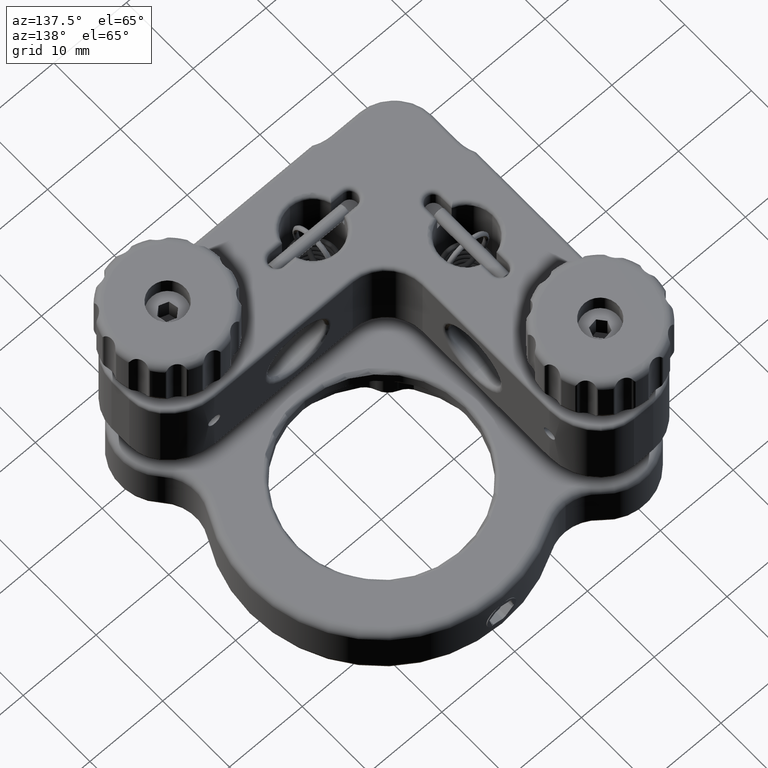
[diagram: clean part render]
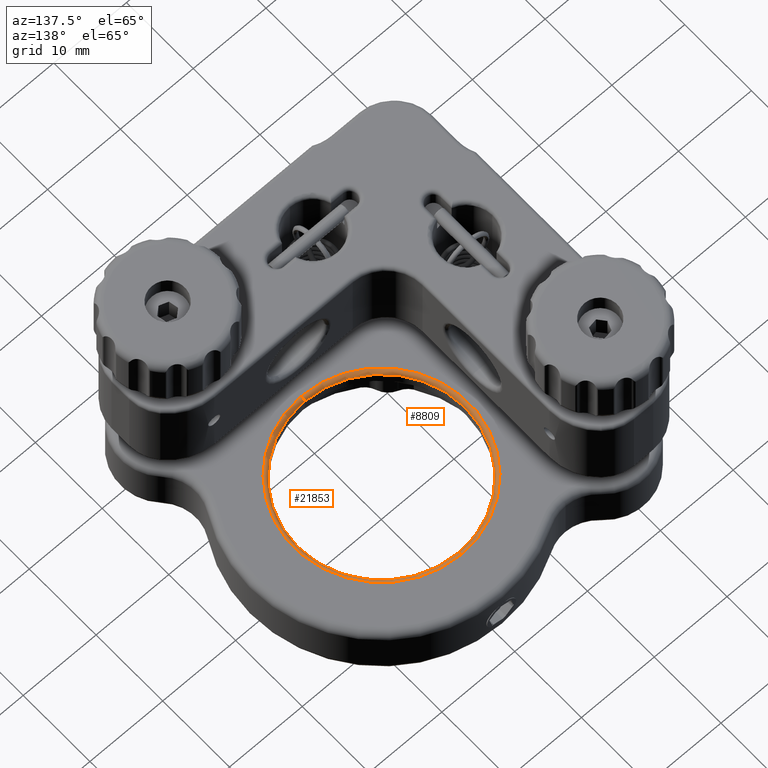
[diagram: same view with one multi-face feature highlighted, each face labeled with its STEP entity id]
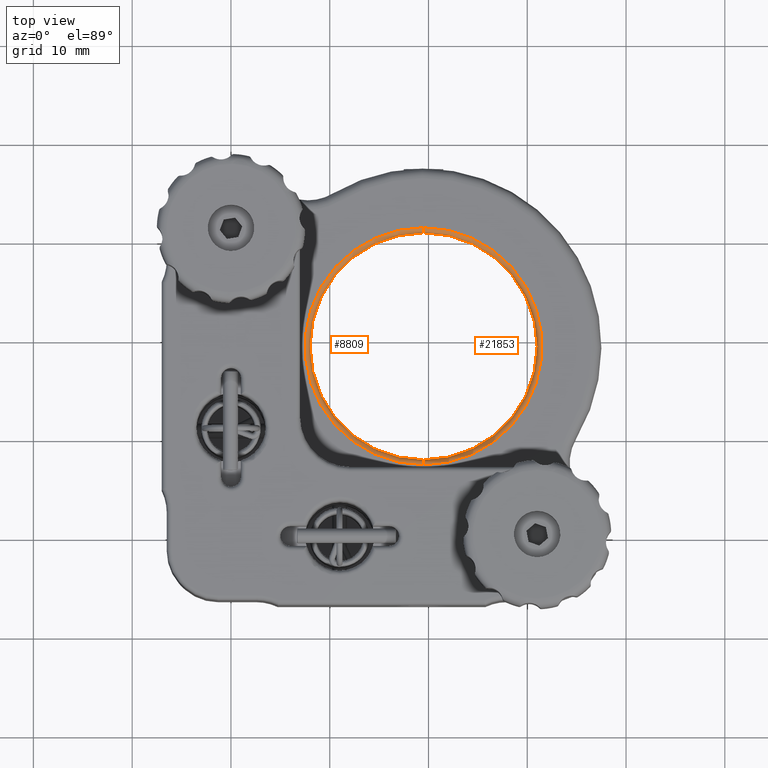
[diagram: same view with one multi-face feature highlighted, each face labeled with its STEP entity id]
A machine part, auxiliary view. The highlighted faces form ONE feature: a constant-radius fillet chain: 2 tangent blend faces with common blend radius 0.5 mm. The faces share edges in the B-rep.
A second angle (top view) of the same feature is appended — it is thin or edge-on in the first view.
Their STEP definitions:
[1] entity #8809 (Torus):
#126 = TOROIDAL_SURFACE ( 'NONE', #5390, 12.00000000000001954, 0.5000000000000000000 ) ;
#2197 = CIRCLE ( 'NONE', #17186, 12.00000000000001954 ) ;
#3091 = CARTESIAN_POINT ( 'NONE',  ( 19.50000000000002487, 19.49999999999992539, -10.00000000000000533 ) ) ;
#3881 = VERTEX_POINT ( 'NONE', #6230 ) ;
#4020 = DIRECTION ( 'NONE',  ( 1.000000000000000000, -2.310651670001107050E-15, 6.413346714809496485E-32 ) ) ;
#4253 = VERTEX_POINT ( 'NONE', #21562 ) ;
#4271 = CARTESIAN_POINT ( 'NONE',  ( 19.49999999999999645, 7.499999999999907629, -10.50000000000000533 ) ) ;
#4622 = CARTESIAN_POINT ( 'NONE',  ( 19.49999999999999645, 7.499999999999907629, -10.00000000000000533 ) ) ;
#4976 = AXIS2_PLACEMENT_3D ( 'NONE', #9349, #15187, #22944 ) ;
#5276 = DIRECTION ( 'NONE',  ( 0.000000000000000000, -1.000000000000000000, 0.000000000000000000 ) ) ;
#5390 = AXIS2_PLACEMENT_3D ( 'NONE', #15436, #13153, #13525 ) ;
#5485 = EDGE_CURVE ( 'NONE', #21430, #4253, #2197, .T. ) ;
#6105 = EDGE_CURVE ( 'NONE', #3881, #23678, #23222, .T. ) ;
#6230 = CARTESIAN_POINT ( 'NONE',  ( 19.50000000000005329, 30.99999999999994316, -10.50000000000000533 ) ) ;
#7184 = EDGE_LOOP ( 'NONE', ( #20713, #14180, #21965, #24104 ) ) ;
#7410 = AXIS2_PLACEMENT_3D ( 'NONE', #4271, #4020, #11760 ) ;
#7802 = CIRCLE ( 'NONE', #7410, 0.5000000000000004441 ) ;
#8809 = ADVANCED_FACE ( 'NONE', ( #24973 ), #126, .T. ) ;
#8894 = EDGE_CURVE ( 'NONE', #23678, #21430, #7802, .T. ) ;
#9349 = CARTESIAN_POINT ( 'NONE',  ( 19.50000000000002487, 19.49999999999992539, -10.50000000000000533 ) ) ;
#11694 = CARTESIAN_POINT ( 'NONE',  ( 19.49999999999999645, 7.999999999999908518, -10.50000000000000533 ) ) ;
#11760 = DIRECTION ( 'NONE',  ( 0.000000000000000000, 1.000000000000000000, 0.000000000000000000 ) ) ;
#12726 = DIRECTION ( 'NONE',  ( -2.312964634635739111E-15, -1.000000000000000000, 0.000000000000000000 ) ) ;
#13028 = EDGE_CURVE ( 'NONE', #3881, #4253, #17742, .T. ) ;
#13153 = DIRECTION ( 'NONE',  ( 0.000000000000000000, -2.775557561562891967E-17, -1.000000000000000000 ) ) ;
#13525 = DIRECTION ( 'NONE',  ( -2.220446049250309531E-15, -1.000000000000000000, 2.775557561562891967E-17 ) ) ;
#14180 = ORIENTED_EDGE ( 'NONE', *, *, #13028, .T. ) ;
#14920 = DIRECTION ( 'NONE',  ( -1.000000000000000000, 2.188186990086371902E-15, -6.073438946447774201E-32 ) ) ;
#15187 = DIRECTION ( 'NONE',  ( -0.000000000000000000, 2.775557561562891967E-17, 1.000000000000000000 ) ) ;
#15436 = CARTESIAN_POINT ( 'NONE',  ( 19.50000000000002487, 19.49999999999992539, -10.50000000000000533 ) ) ;
#17186 = AXIS2_PLACEMENT_3D ( 'NONE', #3091, #22265, #12726 ) ;
#17742 = CIRCLE ( 'NONE', #19784, 0.5000000000000004441 ) ;
#18879 = CARTESIAN_POINT ( 'NONE',  ( 19.50000000000005329, 31.49999999999994316, -10.50000000000000533 ) ) ;
#19784 = AXIS2_PLACEMENT_3D ( 'NONE', #18879, #14920, #5276 ) ;
#20713 = ORIENTED_EDGE ( 'NONE', *, *, #6105, .F. ) ;
#21430 = VERTEX_POINT ( 'NONE', #4622 ) ;
#21562 = CARTESIAN_POINT ( 'NONE',  ( 19.50000000000005329, 31.49999999999994316, -10.00000000000000533 ) ) ;
#21965 = ORIENTED_EDGE ( 'NONE', *, *, #5485, .F. ) ;
#22265 = DIRECTION ( 'NONE',  ( 0.000000000000000000, -2.775557561562891967E-17, -1.000000000000000000 ) ) ;
#22944 = DIRECTION ( 'NONE',  ( -2.413528314402509948E-15, -1.000000000000000000, 0.000000000000000000 ) ) ;
#23222 = CIRCLE ( 'NONE', #4976, 11.50000000000001954 ) ;
#23678 = VERTEX_POINT ( 'NONE', #11694 ) ;
#24104 = ORIENTED_EDGE ( 'NONE', *, *, #8894, .F. ) ;
#24973 = FACE_OUTER_BOUND ( 'NONE', #7184, .T. ) ;
[2] entity #21853 (Torus):
#1191 = CIRCLE ( 'NONE', #8466, 11.50000000000001954 ) ;
#3323 = ORIENTED_EDGE ( 'NONE', *, *, #17327, .F. ) ;
#3589 = FACE_OUTER_BOUND ( 'NONE', #23650, .T. ) ;
#3881 = VERTEX_POINT ( 'NONE', #6230 ) ;
#4020 = DIRECTION ( 'NONE',  ( 1.000000000000000000, -2.310651670001107050E-15, 6.413346714809496485E-32 ) ) ;
#4253 = VERTEX_POINT ( 'NONE', #21562 ) ;
#4271 = CARTESIAN_POINT ( 'NONE',  ( 19.49999999999999645, 7.499999999999907629, -10.50000000000000533 ) ) ;
#4622 = CARTESIAN_POINT ( 'NONE',  ( 19.49999999999999645, 7.499999999999907629, -10.00000000000000533 ) ) ;
#5276 = DIRECTION ( 'NONE',  ( 0.000000000000000000, -1.000000000000000000, 0.000000000000000000 ) ) ;
#5621 = CARTESIAN_POINT ( 'NONE',  ( 19.50000000000002487, 19.49999999999992539, -10.50000000000000533 ) ) ;
#5765 = DIRECTION ( 'NONE',  ( -2.413528314402509948E-15, -1.000000000000000000, 0.000000000000000000 ) ) ;
#6230 = CARTESIAN_POINT ( 'NONE',  ( 19.50000000000005329, 30.99999999999994316, -10.50000000000000533 ) ) ;
#6378 = TOROIDAL_SURFACE ( 'NONE', #13663, 12.00000000000001954, 0.5000000000000000000 ) ;
#7410 = AXIS2_PLACEMENT_3D ( 'NONE', #4271, #4020, #11760 ) ;
#7802 = CIRCLE ( 'NONE', #7410, 0.5000000000000004441 ) ;
#7900 = ORIENTED_EDGE ( 'NONE', *, *, #13028, .F. ) ;
#8466 = AXIS2_PLACEMENT_3D ( 'NONE', #15166, #11605, #5765 ) ;
#8894 = EDGE_CURVE ( 'NONE', #23678, #21430, #7802, .T. ) ;
#10577 = DIRECTION ( 'NONE',  ( -2.312964634635739111E-15, -1.000000000000000000, 0.000000000000000000 ) ) ;
#11605 = DIRECTION ( 'NONE',  ( -0.000000000000000000, 2.775557561562891967E-17, 1.000000000000000000 ) ) ;
#11694 = CARTESIAN_POINT ( 'NONE',  ( 19.49999999999999645, 7.999999999999908518, -10.50000000000000533 ) ) ;
#11760 = DIRECTION ( 'NONE',  ( 0.000000000000000000, 1.000000000000000000, 0.000000000000000000 ) ) ;
#12334 = ORIENTED_EDGE ( 'NONE', *, *, #8894, .T. ) ;
#13028 = EDGE_CURVE ( 'NONE', #3881, #4253, #17742, .T. ) ;
#13468 = DIRECTION ( 'NONE',  ( 0.000000000000000000, -2.775557561562891967E-17, -1.000000000000000000 ) ) ;
#13663 = AXIS2_PLACEMENT_3D ( 'NONE', #5621, #13468, #23513 ) ;
#14012 = DIRECTION ( 'NONE',  ( 0.000000000000000000, -2.775557561562891967E-17, -1.000000000000000000 ) ) ;
#14249 = CARTESIAN_POINT ( 'NONE',  ( 19.50000000000002487, 19.49999999999992539, -10.00000000000000533 ) ) ;
#14622 = ORIENTED_EDGE ( 'NONE', *, *, #20632, .F. ) ;
#14920 = DIRECTION ( 'NONE',  ( -1.000000000000000000, 2.188186990086371902E-15, -6.073438946447774201E-32 ) ) ;
#15166 = CARTESIAN_POINT ( 'NONE',  ( 19.50000000000002487, 19.49999999999992539, -10.50000000000000533 ) ) ;
#17327 = EDGE_CURVE ( 'NONE', #23678, #3881, #1191, .T. ) ;
#17742 = CIRCLE ( 'NONE', #19784, 0.5000000000000004441 ) ;
#18879 = CARTESIAN_POINT ( 'NONE',  ( 19.50000000000005329, 31.49999999999994316, -10.50000000000000533 ) ) ;
#19784 = AXIS2_PLACEMENT_3D ( 'NONE', #18879, #14920, #5276 ) ;
#20632 = EDGE_CURVE ( 'NONE', #4253, #21430, #24009, .T. ) ;
#21430 = VERTEX_POINT ( 'NONE', #4622 ) ;
#21562 = CARTESIAN_POINT ( 'NONE',  ( 19.50000000000005329, 31.49999999999994316, -10.00000000000000533 ) ) ;
#21853 = ADVANCED_FACE ( 'NONE', ( #3589 ), #6378, .T. ) ;
#22011 = AXIS2_PLACEMENT_3D ( 'NONE', #14249, #14012, #10577 ) ;
#23513 = DIRECTION ( 'NONE',  ( -2.220446049250309531E-15, -1.000000000000000000, 2.775557561562891967E-17 ) ) ;
#23650 = EDGE_LOOP ( 'NONE', ( #7900, #3323, #12334, #14622 ) ) ;
#23678 = VERTEX_POINT ( 'NONE', #11694 ) ;
#24009 = CIRCLE ( 'NONE', #22011, 12.00000000000001954 ) ;